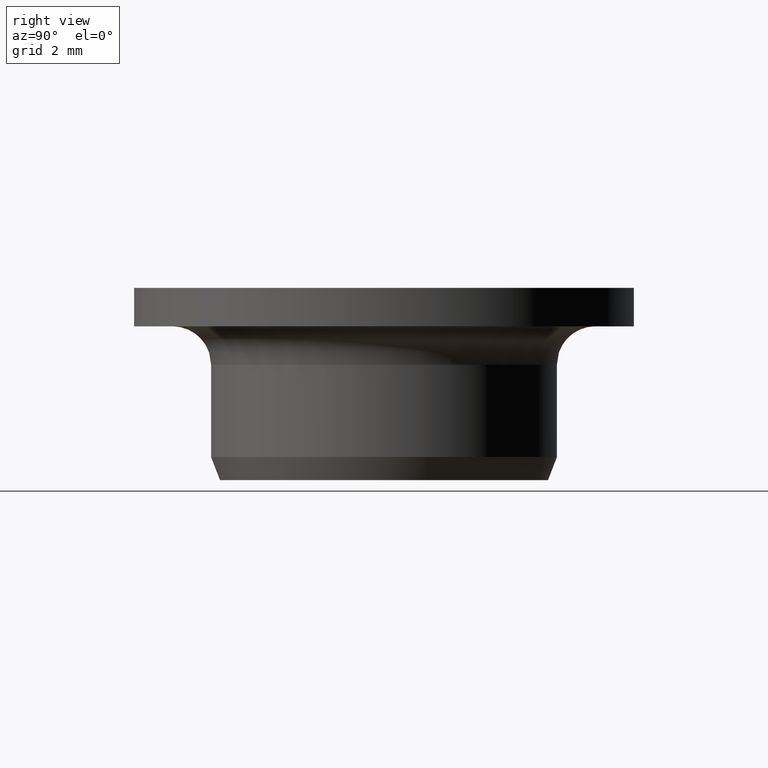
[diagram: clean part render]
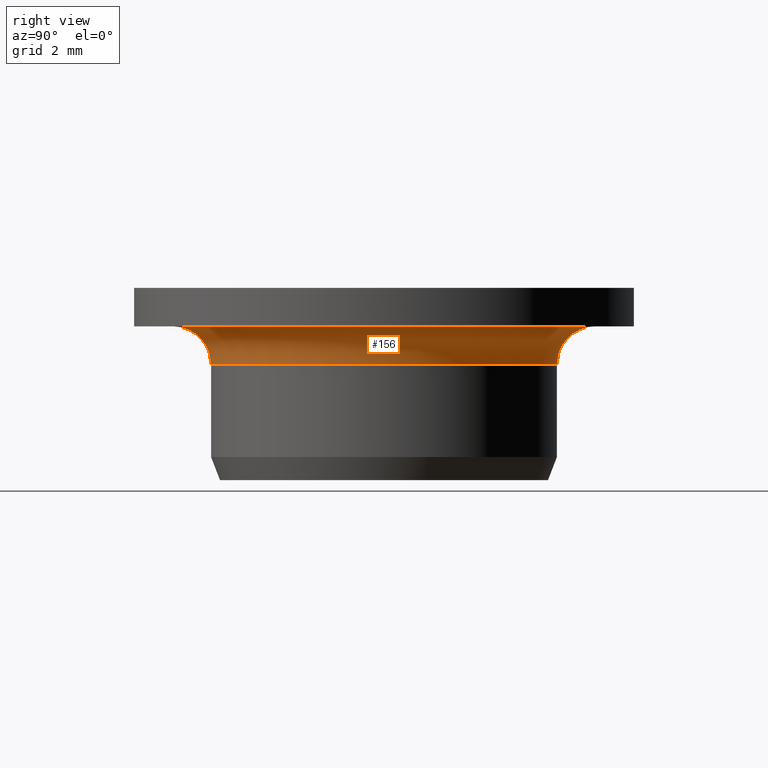
[diagram: same view with one face highlighted and labeled with its STEP entity id]
A machine part, right view. The second image highlights one B-rep face of the part: STEP entity #156.
In plain terms, the highlighted toroidal blend (fillet) surface has major radius 5.5 mm and minor (blend) radius 1 mm.
Its self-contained STEP definition (entity closure, byte-faithful):
#156=ADVANCED_FACE('',(#173),#174,.F.);
#173=FACE_OUTER_BOUND('',#198,.T.);
#174=TOROIDAL_SURFACE('',#199,0.0055,0.001);
#198=EDGE_LOOP('',(#243,#244,#245,#246));
#199=AXIS2_PLACEMENT_3D('',#247,#248,#249);
#243=ORIENTED_EDGE('',*,*,#328,.T.);
#244=ORIENTED_EDGE('',*,*,#329,.T.);
#245=ORIENTED_EDGE('',*,*,#330,.F.);
#246=ORIENTED_EDGE('',*,*,#316,.F.);
#247=CARTESIAN_POINT('',(0.0,0.0,0.003));
#248=DIRECTION('',(0.0,-6.12323399573677E-017,-1.0));
#249=DIRECTION('',(0.0,1.0,-6.12323399573677E-017));
#316=EDGE_CURVE('',#349,#351,#352,.T.);
#328=EDGE_CURVE('',#349,#372,#373,.T.);
#329=EDGE_CURVE('',#372,#374,#375,.T.);
#330=EDGE_CURVE('',#351,#374,#376,.T.);
#349=VERTEX_POINT('',#414);
#351=VERTEX_POINT('',#417);
#352=B_SPLINE_CURVE_WITH_KNOTS('',3,(#418,#419,#420,#421,#422,#423,#424,#425,#426,#427),.UNSPECIFIED.,.F.,.F.,(4,2,2,2,4),(2.53526387980243E-005,0.000416688694121858,0.00080802474944569,0.00119936080476952,0.00159069686009336),.UNSPECIFIED.);
#372=VERTEX_POINT('',#472);
#373=CIRCLE('',#473,0.0055);
#374=VERTEX_POINT('',#474);
#375=B_SPLINE_CURVE_WITH_KNOTS('',3,(#475,#476,#477,#478,#479,#480,#481,#482,#483,#484),.UNSPECIFIED.,.F.,.F.,(4,2,2,2,4),(2.53526387980243E-005,0.000416688694121858,0.00080802474944569,0.00119936080476952,0.00159069686009336),.UNSPECIFIED.);
#376=CIRCLE('',#485,0.0045);
#414=CARTESIAN_POINT('',(0.0054749280112809,-0.000524560074054199,0.004));
#417=CARTESIAN_POINT('',(0.00448634897185272,-0.000350246916840152,0.003));
#418=CARTESIAN_POINT('',(0.0054749280112809,-0.000524560074054201,0.004));
#419=CARTESIAN_POINT('',(0.00534513666577728,-0.000501674357979458,0.004));
#420=CARTESIAN_POINT('',(0.00521662985057559,-0.000479015139254483,0.00397401240643036));
#421=CARTESIAN_POINT('',(0.00497811634589849,-0.000436958773116576,0.00387423474042894));
#422=CARTESIAN_POINT('',(0.0048681886751054,-0.000417575558829317,0.00380002575497677));
#423=CARTESIAN_POINT('',(0.00468578911455732,-0.000385413595035322,0.00361606195503831));
#424=CARTESIAN_POINT('',(0.0046118206114008,-0.000372370952206208,0.00350454473552808));
#425=CARTESIAN_POINT('',(0.00451272387535558,-0.000354897523941292,0.00326381132397871));
#426=CARTESIAN_POINT('',(0.00448634897184844,-0.0003502469168394,0.0031323331576408));
#427=CARTESIAN_POINT('',(0.00448634897184837,-0.000350246916839388,0.00300000000000054));
#472=CARTESIAN_POINT('',(0.0054749280112809,0.0005245600740542,0.004));
#473=AXIS2_PLACEMENT_3D('',#528,#529,#530);
#474=CARTESIAN_POINT('',(0.00448634897185272,0.000350246916840154,0.003));
#475=CARTESIAN_POINT('',(0.0054749280112809,0.0005245600740542,0.004));
#476=CARTESIAN_POINT('',(0.00534513666577728,0.000501674357979458,0.004));
#477=CARTESIAN_POINT('',(0.00521662985057559,0.000479015139254483,0.00397401240643036));
#478=CARTESIAN_POINT('',(0.00497811634589849,0.000436958773116575,0.00387423474042894));
#479=CARTESIAN_POINT('',(0.0048681886751054,0.000417575558829317,0.00380002575497677));
#480=CARTESIAN_POINT('',(0.00468578911455732,0.000385413595035322,0.00361606195503831));
#481=CARTESIAN_POINT('',(0.00461182061140079,0.000372370952206208,0.00350454473552808));
#482=CARTESIAN_POINT('',(0.00451272387535558,0.000354897523941292,0.00326381132397871));
#483=CARTESIAN_POINT('',(0.00448634897184844,0.000350246916839401,0.0031323331576408));
#484=CARTESIAN_POINT('',(0.00448634897184837,0.000350246916839388,0.00300000000000054));
#485=AXIS2_PLACEMENT_3D('',#531,#532,#533);
#528=CARTESIAN_POINT('',(0.0,0.0,0.004));
#529=DIRECTION('',(0.0,-6.12323399573677E-017,-1.0));
#530=DIRECTION('',(0.0,1.0,-6.12323399573677E-017));
#531=CARTESIAN_POINT('',(0.0,0.0,0.003));
#532=DIRECTION('',(0.0,-6.12323399573677E-017,-1.0));
#533=DIRECTION('',(0.0,1.0,-6.12323399573677E-017));